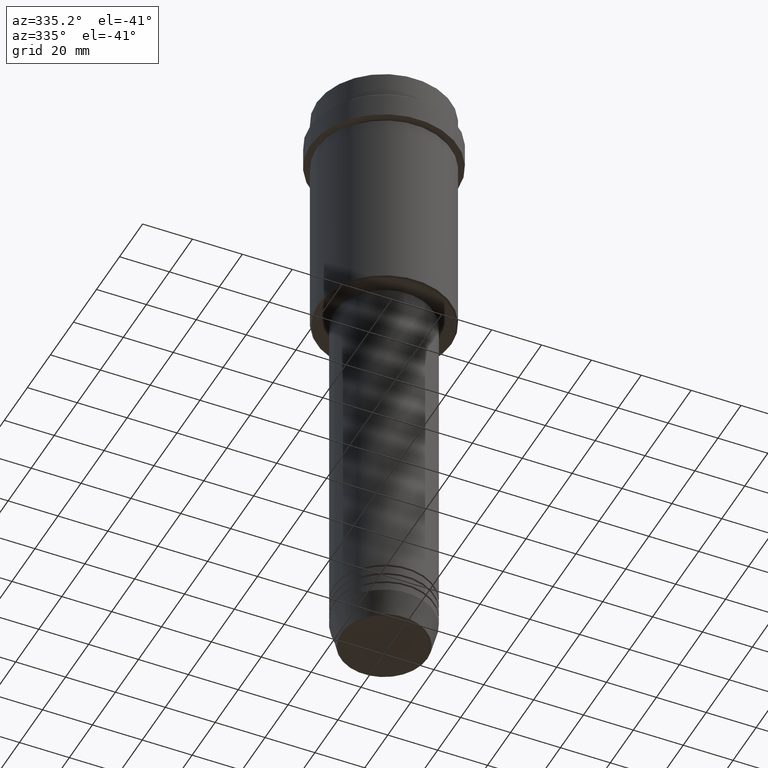
[diagram: clean part render]
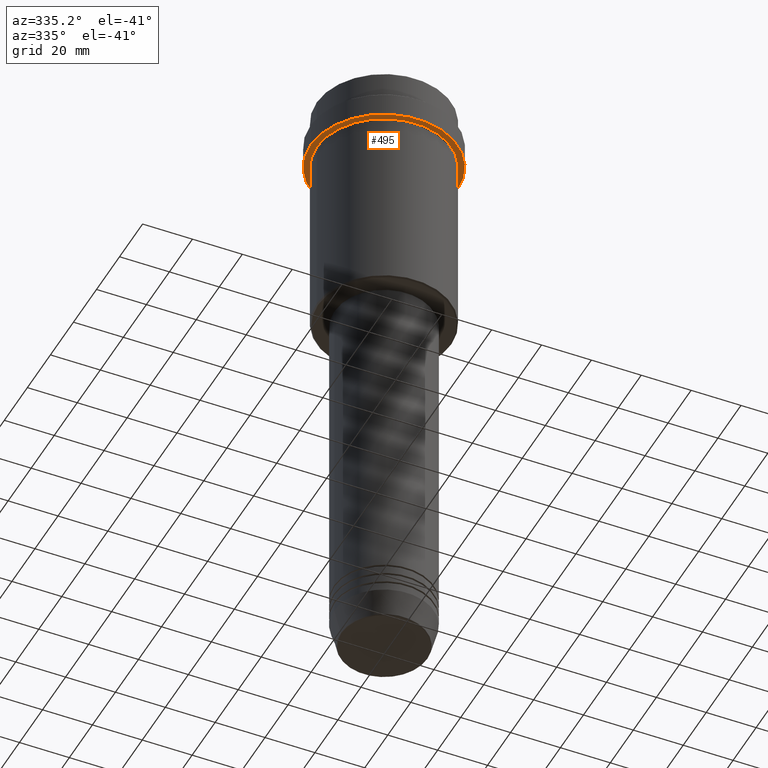
[diagram: same view with one face highlighted and labeled with its STEP entity id]
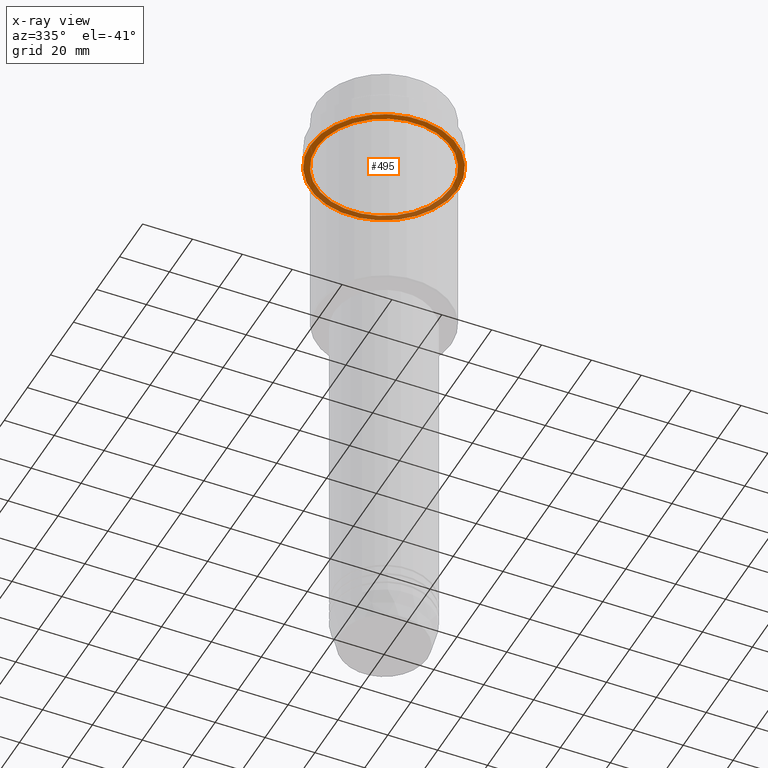
[diagram: x-ray of the same camera — body ghosted, the highlighted face saturated]
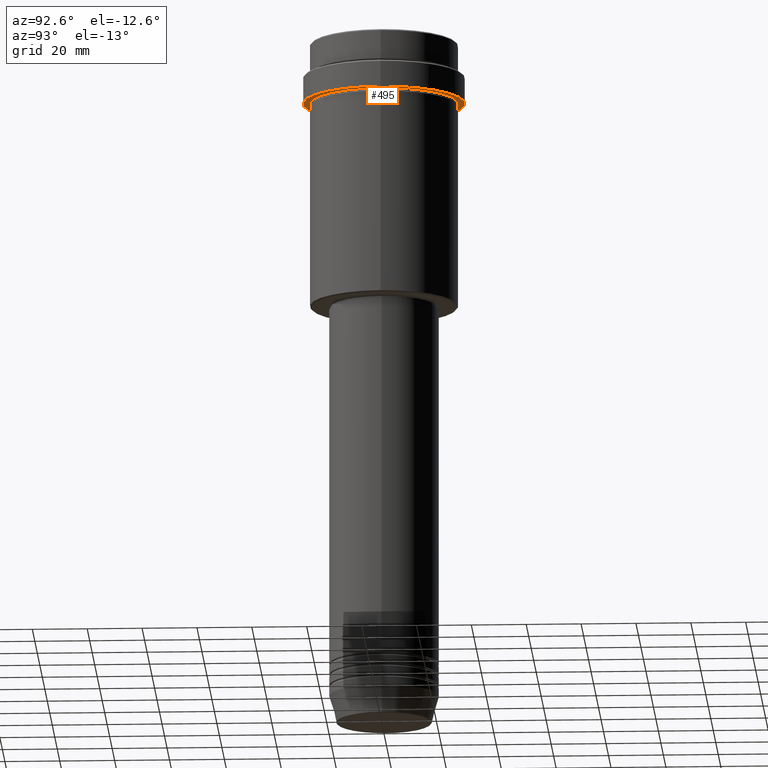
[diagram: same view with one face highlighted and labeled with its STEP entity id]
A machine part, auxiliary view. The second image highlights one B-rep face of the part: STEP entity #495.
The next image is the same camera in x-ray: the body ghosted, the highlighted face saturated — about 37% of this face is hidden behind the body in this view.
A second angle (auxiliary view) of the same face is appended — the face is thin or edge-on in the first view.
In plain terms, the highlighted planar face has unit normal (0, 0, -1).
Its self-contained STEP definition (entity closure, byte-faithful):
#89 = EDGE_CURVE ( 'NONE', #382, #1056, #507, .T. ) ;
#96 = CIRCLE ( 'NONE', #1155, 26.99999999999999645 ) ;
#162 = DIRECTION ( 'NONE',  ( -0.000000000000000000, -0.000000000000000000, 1.000000000000000000 ) ) ;
#201 = EDGE_LOOP ( 'NONE', ( #1357, #226 ) ) ;
#226 = ORIENTED_EDGE ( 'NONE', *, *, #1265, .T. ) ;
#291 = DIRECTION ( 'NONE',  ( 1.000000000000000000, 0.000000000000000000, 0.000000000000000000 ) ) ;
#327 = PLANE ( 'NONE',  #955 ) ;
#341 = DIRECTION ( 'NONE',  ( -0.000000000000000000, -0.000000000000000000, 1.000000000000000000 ) ) ;
#350 = FACE_BOUND ( 'NONE', #201, .T. ) ;
#356 = AXIS2_PLACEMENT_3D ( 'NONE', #841, #1259, #291 ) ;
#362 = DIRECTION ( 'NONE',  ( -1.000000000000000000, 0.000000000000000000, 0.000000000000000000 ) ) ;
#382 = VERTEX_POINT ( 'NONE', #1066 ) ;
#437 = CARTESIAN_POINT ( 'NONE',  ( -26.99999999999999645, 0.000000000000000000, -22.00000000000000711 ) ) ;
#495 = ADVANCED_FACE ( 'NONE', ( #350, #1211 ), #327, .T. ) ;
#507 = CIRCLE ( 'NONE', #356, 29.49999999999999645 ) ;
#519 = DIRECTION ( 'NONE',  ( -1.000000000000000000, 0.000000000000000000, 0.000000000000000000 ) ) ;
#550 = ORIENTED_EDGE ( 'NONE', *, *, #599, .F. ) ;
#572 = CARTESIAN_POINT ( 'NONE',  ( 0.000000000000000000, 0.000000000000000000, -22.00000000000000711 ) ) ;
#574 = CARTESIAN_POINT ( 'NONE',  ( 29.49999999999999645, 0.000000000000000000, -22.00000000000000711 ) ) ;
#599 = EDGE_CURVE ( 'NONE', #1056, #382, #650, .T. ) ;
#650 = CIRCLE ( 'NONE', #838, 29.49999999999999645 ) ;
#790 = AXIS2_PLACEMENT_3D ( 'NONE', #1395, #1314, #519 ) ;
#838 = AXIS2_PLACEMENT_3D ( 'NONE', #938, #162, #1024 ) ;
#841 = CARTESIAN_POINT ( 'NONE',  ( 0.000000000000000000, 0.000000000000000000, -22.00000000000000711 ) ) ;
#853 = ORIENTED_EDGE ( 'NONE', *, *, #89, .F. ) ;
#880 = DIRECTION ( 'NONE',  ( 0.000000000000000000, 0.000000000000000000, -1.000000000000000000 ) ) ;
#938 = CARTESIAN_POINT ( 'NONE',  ( 0.000000000000000000, 0.000000000000000000, -22.00000000000000711 ) ) ;
#947 = CARTESIAN_POINT ( 'NONE',  ( 26.99999999999999645, 3.306546357697853339E-15, -22.00000000000000711 ) ) ;
#955 = AXIS2_PLACEMENT_3D ( 'NONE', #1004, #880, #1102 ) ;
#1004 = CARTESIAN_POINT ( 'NONE',  ( 0.000000000000000000, 29.49999999999999645, -22.00000000000000711 ) ) ;
#1024 = DIRECTION ( 'NONE',  ( 1.000000000000000000, 0.000000000000000000, 0.000000000000000000 ) ) ;
#1056 = VERTEX_POINT ( 'NONE', #574 ) ;
#1066 = CARTESIAN_POINT ( 'NONE',  ( -29.49999999999999645, 3.612708057484690815E-15, -22.00000000000000711 ) ) ;
#1073 = VERTEX_POINT ( 'NONE', #947 ) ;
#1102 = DIRECTION ( 'NONE',  ( -1.000000000000000000, 0.000000000000000000, -0.000000000000000000 ) ) ;
#1144 = EDGE_LOOP ( 'NONE', ( #550, #853 ) ) ;
#1155 = AXIS2_PLACEMENT_3D ( 'NONE', #572, #341, #362 ) ;
#1199 = CIRCLE ( 'NONE', #790, 26.99999999999999645 ) ;
#1211 = FACE_OUTER_BOUND ( 'NONE', #1144, .T. ) ;
#1236 = VERTEX_POINT ( 'NONE', #437 ) ;
#1259 = DIRECTION ( 'NONE',  ( -0.000000000000000000, -0.000000000000000000, 1.000000000000000000 ) ) ;
#1265 = EDGE_CURVE ( 'NONE', #1073, #1236, #1199, .T. ) ;
#1314 = DIRECTION ( 'NONE',  ( -0.000000000000000000, -0.000000000000000000, 1.000000000000000000 ) ) ;
#1357 = ORIENTED_EDGE ( 'NONE', *, *, #1411, .T. ) ;
#1395 = CARTESIAN_POINT ( 'NONE',  ( 0.000000000000000000, 0.000000000000000000, -22.00000000000000711 ) ) ;
#1411 = EDGE_CURVE ( 'NONE', #1236, #1073, #96, .T. ) ;